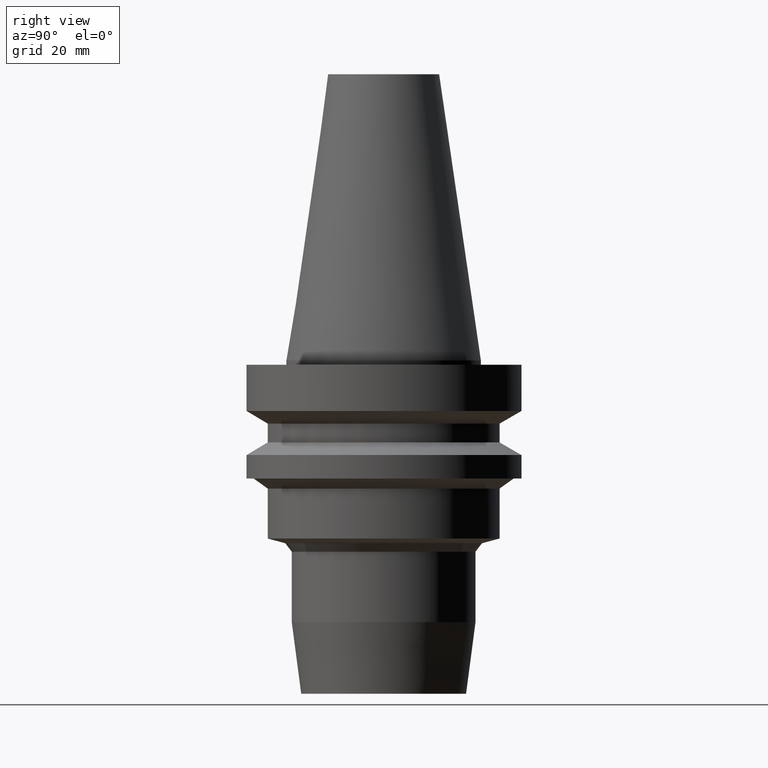
[diagram: clean part render]
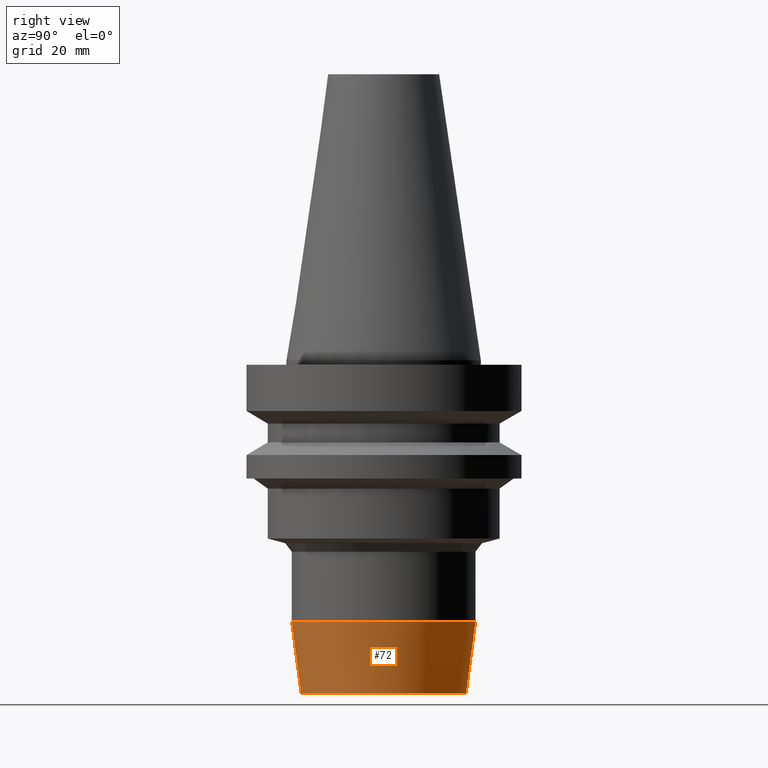
[diagram: same view with one face highlighted and labeled with its STEP entity id]
A machine part, right view. The second image highlights one B-rep face of the part: STEP entity #72.
In plain terms, the highlighted conical surface has half-angle 7.5 deg.
Its self-contained STEP definition (entity closure, byte-faithful):
#72=ADVANCED_FACE('Unnamed[1]',(#181,#182),#183,.T.);
#74=EDGE_CURVE('Unnamed[1]',#185,#185,#186,.T.);
#96=EDGE_CURVE('Unnamed[1]',#220,#220,#221,.T.);
#181=FACE_BOUND('',#327,.T.);
#182=FACE_BOUND('',#328,.T.);
#183=CONICAL_SURFACE('',#329,19.9227653025984,0.130899693899637);
#185=VERTEX_POINT('',#332);
#186=CIRCLE('',#333,18.8455306051986);
#220=VERTEX_POINT('',#375);
#221=CIRCLE('',#376,20.9999999999983);
#327=EDGE_LOOP('',(#491));
#328=EDGE_LOOP('',(#492));
#329=AXIS2_PLACEMENT_3D('',#493,#494,#495);
#332=CARTESIAN_POINT('',(4.66591020610428E-015,18.8455306051986,-76.2000963764062));
#333=AXIS2_PLACEMENT_3D('',#496,#497,#498);
#375=CARTESIAN_POINT('',(3.66385399883422E-015,20.9999999999983,-59.8352766101237));
#376=AXIS2_PLACEMENT_3D('',#537,#538,#539);
#491=ORIENTED_EDGE('',*,*,#74,.F.);
#492=ORIENTED_EDGE('',*,*,#96,.T.);
#493=CARTESIAN_POINT('',(4.16488210246925E-015,-1.28928424224564E-014,-68.0176864932649));
#494=DIRECTION('',(-6.12323399573677E-017,6.70009952006047E-016,1.0));
#495=DIRECTION('',(3.61991244252895E-032,1.0,-6.70009952006047E-016));
#496=CARTESIAN_POINT('',(4.66591020610428E-015,-1.83751384755538E-014,-76.2000963764062));
#497=DIRECTION('',(6.12323399573676E-017,-6.70009952006037E-016,-1.0));
#498=DIRECTION('',(3.61991244252815E-032,1.0,-6.70009952006037E-016));
#537=CARTESIAN_POINT('',(3.66385399883422E-015,-7.41054636935907E-015,-59.8352766101237));
#538=DIRECTION('',(6.12323399573676E-017,-6.70009952006056E-016,-1.0));
#539=DIRECTION('',(3.61991244252838E-032,1.0,-6.70009952006056E-016));